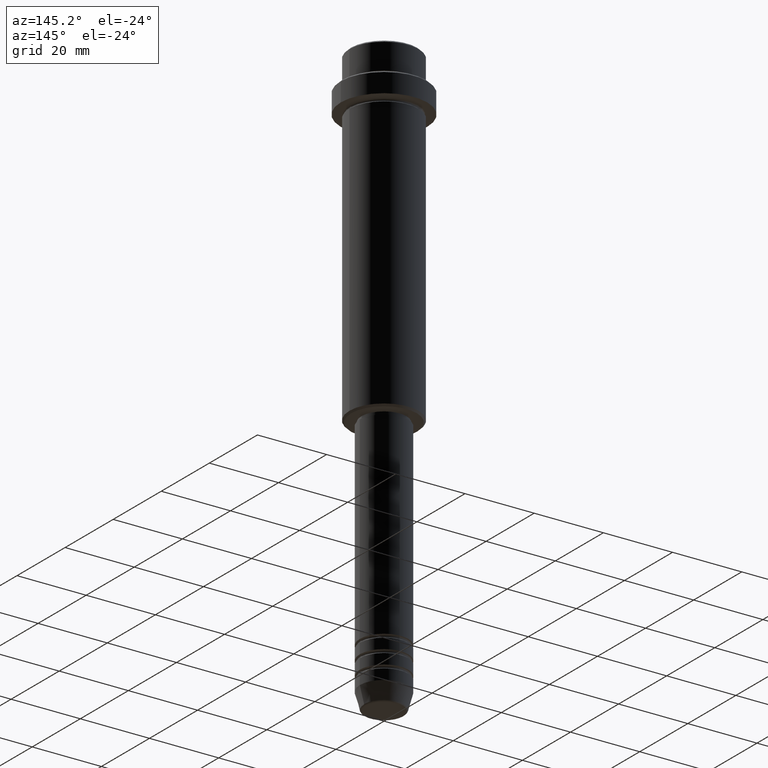
[diagram: clean part render]
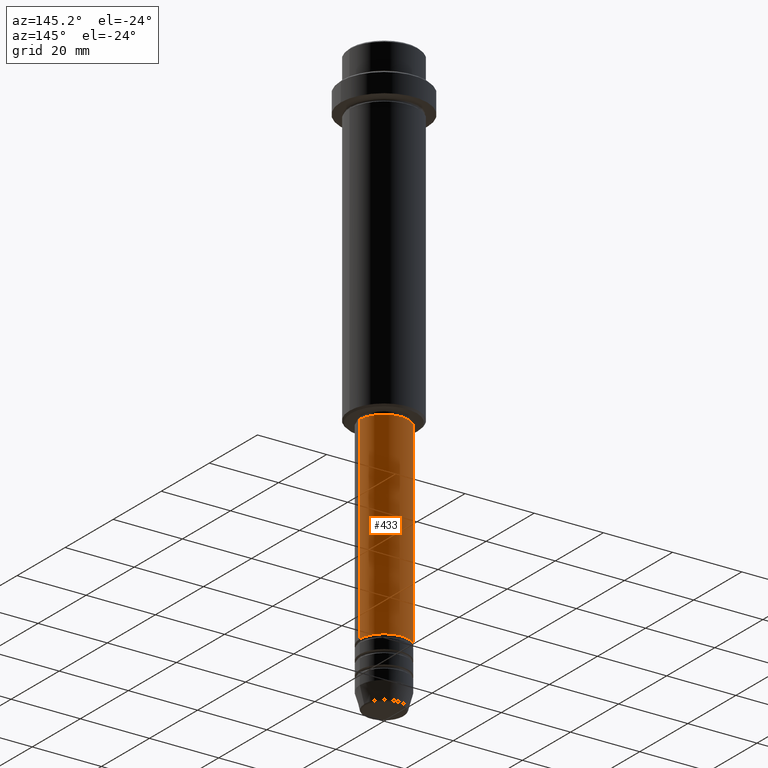
[diagram: same view with one face highlighted and labeled with its STEP entity id]
A machine part, auxiliary view. The second image highlights one B-rep face of the part: STEP entity #433.
In plain terms, the highlighted cylindrical surface (edge-blend (fillet) strip) has radius 7 mm, axis along (-0, -0, 1).
Its self-contained STEP definition (entity closure, byte-faithful):
#23 = DIRECTION ( 'NONE',  ( 1.000000000000000000, 0.000000000000000000, 0.000000000000000000 ) ) ;
#39 = CARTESIAN_POINT ( 'NONE',  ( 0.000000000000000000, 0.000000000000000000, 0.000000000000000000 ) ) ;
#60 = LINE ( 'NONE', #1033, #1337 ) ;
#80 = AXIS2_PLACEMENT_3D ( 'NONE', #242, #996, #23 ) ;
#98 = VERTEX_POINT ( 'NONE', #622 ) ;
#114 = EDGE_LOOP ( 'NONE', ( #508, #380, #1350, #870 ) ) ;
#132 = EDGE_CURVE ( 'NONE', #1358, #1356, #60, .T. ) ;
#159 = DIRECTION ( 'NONE',  ( -0.000000000000000000, -0.000000000000000000, 1.000000000000000000 ) ) ;
#163 = CARTESIAN_POINT ( 'NONE',  ( 7.000000000000000000, 0.000000000000000000, -95.99999999999997158 ) ) ;
#242 = CARTESIAN_POINT ( 'NONE',  ( 0.000000000000000000, 0.000000000000000000, -152.9999999999998579 ) ) ;
#293 = EDGE_CURVE ( 'NONE', #1356, #1064, #975, .T. ) ;
#345 = CYLINDRICAL_SURFACE ( 'NONE', #397, 7.000000000000000000 ) ;
#380 = ORIENTED_EDGE ( 'NONE', *, *, #526, .T. ) ;
#397 = AXIS2_PLACEMENT_3D ( 'NONE', #39, #1126, #470 ) ;
#405 = EDGE_CURVE ( 'NONE', #1358, #98, #1364, .T. ) ;
#433 = ADVANCED_FACE ( 'NONE', ( #896 ), #345, .T. ) ;
#470 = DIRECTION ( 'NONE',  ( 1.000000000000000000, 0.000000000000000000, 0.000000000000000000 ) ) ;
#496 = CARTESIAN_POINT ( 'NONE',  ( 7.000000000000000000, 0.000000000000000000, -152.9999999999998579 ) ) ;
#508 = ORIENTED_EDGE ( 'NONE', *, *, #405, .T. ) ;
#512 = VECTOR ( 'NONE', #159, 1000.000000000000000 ) ;
#521 = CARTESIAN_POINT ( 'NONE',  ( 0.000000000000000000, 0.000000000000000000, -95.99999999999997158 ) ) ;
#526 = EDGE_CURVE ( 'NONE', #98, #1064, #941, .T. ) ;
#598 = CARTESIAN_POINT ( 'NONE',  ( -7.000000000000000000, 8.572527594031473190E-16, 0.000000000000000000 ) ) ;
#607 = CARTESIAN_POINT ( 'NONE',  ( -7.000000000000000000, 8.572527594031473190E-16, -95.99999999999997158 ) ) ;
#622 = CARTESIAN_POINT ( 'NONE',  ( -7.000000000000000000, 8.572527594031473190E-16, -152.9999999999998579 ) ) ;
#730 = DIRECTION ( 'NONE',  ( -0.000000000000000000, -0.000000000000000000, 1.000000000000000000 ) ) ;
#870 = ORIENTED_EDGE ( 'NONE', *, *, #132, .F. ) ;
#896 = FACE_OUTER_BOUND ( 'NONE', #114, .T. ) ;
#941 = LINE ( 'NONE', #598, #512 ) ;
#965 = DIRECTION ( 'NONE',  ( -0.000000000000000000, -0.000000000000000000, 1.000000000000000000 ) ) ;
#975 = CIRCLE ( 'NONE', #1160, 7.000000000000000000 ) ;
#996 = DIRECTION ( 'NONE',  ( -0.000000000000000000, -0.000000000000000000, 1.000000000000000000 ) ) ;
#1033 = CARTESIAN_POINT ( 'NONE',  ( 7.000000000000000000, 0.000000000000000000, 0.000000000000000000 ) ) ;
#1064 = VERTEX_POINT ( 'NONE', #607 ) ;
#1126 = DIRECTION ( 'NONE',  ( -0.000000000000000000, -0.000000000000000000, 1.000000000000000000 ) ) ;
#1160 = AXIS2_PLACEMENT_3D ( 'NONE', #521, #965, #1394 ) ;
#1337 = VECTOR ( 'NONE', #730, 1000.000000000000000 ) ;
#1350 = ORIENTED_EDGE ( 'NONE', *, *, #293, .F. ) ;
#1356 = VERTEX_POINT ( 'NONE', #163 ) ;
#1358 = VERTEX_POINT ( 'NONE', #496 ) ;
#1364 = CIRCLE ( 'NONE', #80, 7.000000000000000000 ) ;
#1394 = DIRECTION ( 'NONE',  ( 1.000000000000000000, 0.000000000000000000, 0.000000000000000000 ) ) ;